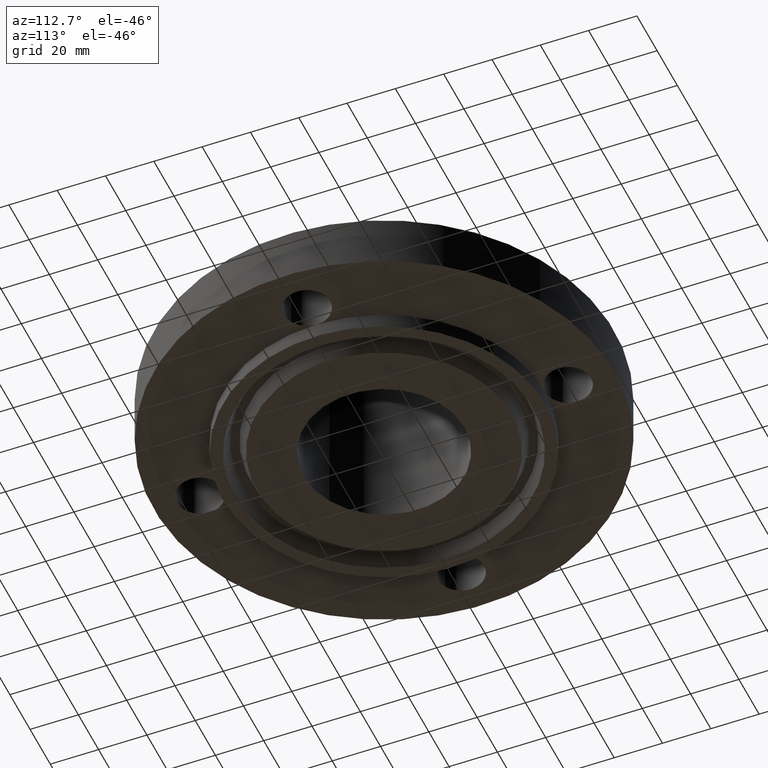
[diagram: clean part render]
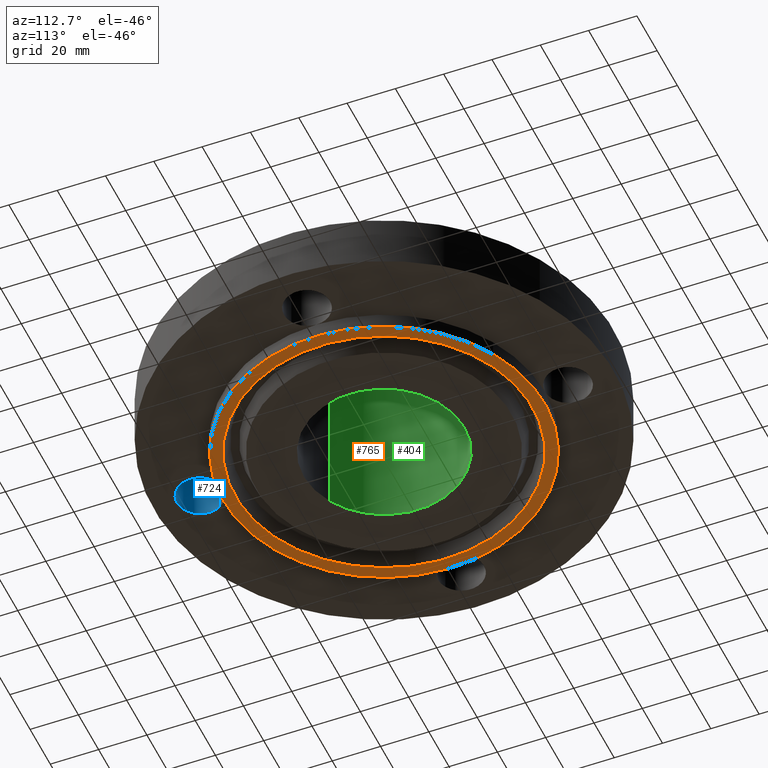
[diagram: same view with three faces highlighted in distinct colors, each labeled with its STEP entity id]
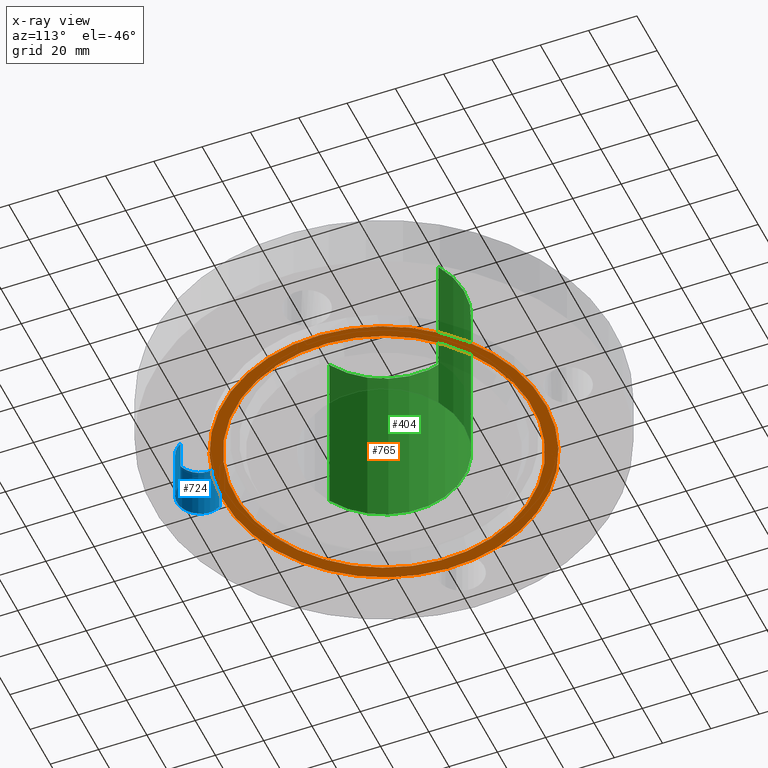
[diagram: x-ray of the same camera — body ghosted, the three highlighted faces saturated]
A machine part, auxiliary view with three faces highlighted in distinct colors.
The next image is the same camera in x-ray (body ghosted, the three faces saturated) — at least one of them is partly hidden behind the body in this view.
Their STEP definitions:

[orange] entity #765 — the highlighted planar face has unit normal (0, 0, -1).
#439=AXIS2_PLACEMENT_3D('Circle Axis2P3D',#437,#438,$) ;
#488=AXIS2_PLACEMENT_3D('Circle Axis2P3D',#486,#487,$) ;
#741=AXIS2_PLACEMENT_3D('Plane Axis2P3D',#738,#739,#740) ;
#749=AXIS2_PLACEMENT_3D('Circle Axis2P3D',#747,#748,$) ;
#758=AXIS2_PLACEMENT_3D('Circle Axis2P3D',#756,#757,$) ;
#437=CARTESIAN_POINT('Axis2P3D Location',(0.,0.,-0.250000000001)) ;
#441=CARTESIAN_POINT('Vertex',(-1.25849203884,-2.30365422497,-0.250000000001)) ;
#443=CARTESIAN_POINT('Vertex',(1.25849203884,2.30365422497,-0.250000000001)) ;
#486=CARTESIAN_POINT('Axis2P3D Location',(0.,0.,-0.250000000001)) ;
#738=CARTESIAN_POINT('Axis2P3D Location',(0.,1.31200000001,-0.250000000001)) ;
#747=CARTESIAN_POINT('Axis2P3D Location',(-4.19611851827E-016,-5.59482469102E-016,-0.250000000001)) ;
#751=CARTESIAN_POINT('Vertex',(1.16110872631,-2.12539526709,-0.250000000001)) ;
#753=CARTESIAN_POINT('Vertex',(-1.16110872631,2.12539526709,-0.250000000001)) ;
#756=CARTESIAN_POINT('Axis2P3D Location',(2.79741234551E-016,5.59482469102E-016,-0.250000000001)) ;
#438=DIRECTION('Axis2P3D Direction',(0.,0.,-0.0393700787402)) ;
#487=DIRECTION('Axis2P3D Direction',(0.,0.,-0.0393700787402)) ;
#739=DIRECTION('Axis2P3D Direction',(0.,0.,-0.0393700787402)) ;
#740=DIRECTION('Axis2P3D XDirection',(0.0393700787402,0.,0.)) ;
#748=DIRECTION('Axis2P3D Direction',(0.,0.,-0.0393700787402)) ;
#757=DIRECTION('Axis2P3D Direction',(0.,0.,-0.0393700787402)) ;
#744=ORIENTED_EDGE('',*,*,#445,.T.) ;
#745=ORIENTED_EDGE('',*,*,#490,.T.) ;
#762=ORIENTED_EDGE('',*,*,#755,.F.) ;
#763=ORIENTED_EDGE('',*,*,#760,.F.) ;
#764=FACE_BOUND('',#761,.T.) ;
#765=ADVANCED_FACE('PartBody',(#746,#764),#742,.T.) ;
#440=CIRCLE('generated circle',#439,2.62500000001) ;
#489=CIRCLE('generated circle',#488,2.62500000001) ;
#750=CIRCLE('generated circle',#749,2.42187500001) ;
#759=CIRCLE('generated circle',#758,2.42187500001) ;
#445=EDGE_CURVE('',#442,#444,#440,.T.) ;
#490=EDGE_CURVE('',#444,#442,#489,.T.) ;
#755=EDGE_CURVE('',#752,#754,#750,.T.) ;
#760=EDGE_CURVE('',#754,#752,#759,.T.) ;
#743=EDGE_LOOP('',(#744,#745)) ;
#761=EDGE_LOOP('',(#762,#763)) ;
#746=FACE_OUTER_BOUND('',#743,.T.) ;
#742=PLANE('',#741) ;
#442=VERTEX_POINT('',#441) ;
#444=VERTEX_POINT('',#443) ;
#752=VERTEX_POINT('',#751) ;
#754=VERTEX_POINT('',#753) ;

[blue] entity #724 — the highlighted cylindrical surface (edge-blend (fillet) strip) has radius 9.525 mm, axis along (-0, 0, -1).
#537=AXIS2_PLACEMENT_3D('Circle Axis2P3D',#535,#536,$) ;
#697=AXIS2_PLACEMENT_3D('Cylinder Axis2P3D',#694,#695,#696) ;
#715=AXIS2_PLACEMENT_3D('Circle Axis2P3D',#713,#714,$) ;
#532=CARTESIAN_POINT('Vertex',(-0.32909346071,-2.82021542303,0.)) ;
#535=CARTESIAN_POINT('Axis2P3D Location',(8.12997962914E-016,-3.00000000001,0.)) ;
#539=CARTESIAN_POINT('Vertex',(0.32909346071,-3.17978457699,0.)) ;
#694=CARTESIAN_POINT('Axis2P3D Location',(3.67394039746E-016,-3.00000000001,0.87606299213)) ;
#699=CARTESIAN_POINT('Line Origine',(0.32909346071,-3.17978457699,0.440000000002)) ;
#703=CARTESIAN_POINT('Vertex',(0.32909346071,-3.17978457699,0.880000000004)) ;
#706=CARTESIAN_POINT('Line Origine',(-0.32909346071,-2.82021542303,0.440000000002)) ;
#710=CARTESIAN_POINT('Vertex',(-0.32909346071,-2.82021542303,0.880000000004)) ;
#713=CARTESIAN_POINT('Axis2P3D Location',(3.67394039746E-016,-3.00000000001,0.880000000004)) ;
#536=DIRECTION('Axis2P3D Direction',(0.,0.,-0.0393700787402)) ;
#695=DIRECTION('Axis2P3D Direction',(-0.,0.,-0.0393700787402)) ;
#696=DIRECTION('Axis2P3D XDirection',(-0.0345504945626,0.0188750212049,0.)) ;
#700=DIRECTION('Vector Direction',(0.,0.,-0.0393700787402)) ;
#707=DIRECTION('Vector Direction',(0.,0.,-0.0393700787402)) ;
#714=DIRECTION('Axis2P3D Direction',(-0.,0.,-0.0393700787402)) ;
#701=VECTOR('Line Direction',#700,0.0393700787402) ;
#708=VECTOR('Line Direction',#707,0.0393700787402) ;
#719=ORIENTED_EDGE('',*,*,#705,.F.) ;
#720=ORIENTED_EDGE('',*,*,#541,.T.) ;
#721=ORIENTED_EDGE('',*,*,#712,.T.) ;
#722=ORIENTED_EDGE('',*,*,#717,.F.) ;
#724=ADVANCED_FACE('PartBody',(#723),#698,.F.) ;
#538=CIRCLE('generated circle',#537,0.375000000001) ;
#716=CIRCLE('generated circle',#715,0.375000000001) ;
#698=CYLINDRICAL_SURFACE('generated cylinder',#697,0.375000000001) ;
#541=EDGE_CURVE('',#540,#533,#538,.T.) ;
#705=EDGE_CURVE('',#540,#704,#702,.F.) ;
#712=EDGE_CURVE('',#533,#711,#709,.F.) ;
#717=EDGE_CURVE('',#704,#711,#716,.T.) ;
#718=EDGE_LOOP('',(#719,#720,#721,#722)) ;
#723=FACE_OUTER_BOUND('',#718,.T.) ;
#702=LINE('Line',#699,#701) ;
#709=LINE('Line',#706,#708) ;
#533=VERTEX_POINT('',#532) ;
#540=VERTEX_POINT('',#539) ;
#704=VERTEX_POINT('',#703) ;
#711=VERTEX_POINT('',#710) ;

[green] entity #404 — the highlighted cylindrical surface (partial cylindrical patch) has radius 33.3248 mm, axis along (0, 0, -1).
#351=AXIS2_PLACEMENT_3D('Cylinder Axis2P3D',#348,#349,#350) ;
#390=AXIS2_PLACEMENT_3D('Circle Axis2P3D',#388,#389,$) ;
#395=AXIS2_PLACEMENT_3D('Circle Axis2P3D',#393,#394,$) ;
#348=CARTESIAN_POINT('Axis2P3D Location',(0.,0.,1.22)) ;
#357=CARTESIAN_POINT('Vertex',(0.629006306651,1.1513883212,2.69000000001)) ;
#359=CARTESIAN_POINT('Vertex',(-0.629006306651,-1.1513883212,2.69000000001)) ;
#362=CARTESIAN_POINT('Line Origine',(0.629006306651,1.1513883212,1.22)) ;
#366=CARTESIAN_POINT('Vertex',(0.629006306651,1.1513883212,-0.250000000001)) ;
#373=CARTESIAN_POINT('Vertex',(-0.629006306651,-1.1513883212,-0.250000000001)) ;
#376=CARTESIAN_POINT('Line Origine',(-0.629006306651,-1.1513883212,1.22)) ;
#388=CARTESIAN_POINT('Axis2P3D Location',(0.,0.,2.69000000001)) ;
#393=CARTESIAN_POINT('Axis2P3D Location',(0.,0.,-0.250000000001)) ;
#349=DIRECTION('Axis2P3D Direction',(0.,0.,-0.0393700787402)) ;
#350=DIRECTION('Axis2P3D XDirection',(-0.0188750212049,-0.0345504945626,0.)) ;
#363=DIRECTION('Vector Direction',(0.,0.,-0.0393700787402)) ;
#377=DIRECTION('Vector Direction',(0.,0.,-0.0393700787402)) ;
#389=DIRECTION('Axis2P3D Direction',(0.,0.,-0.0393700787402)) ;
#394=DIRECTION('Axis2P3D Direction',(0.,0.,-0.0393700787402)) ;
#364=VECTOR('Line Direction',#363,0.0393700787402) ;
#378=VECTOR('Line Direction',#377,0.0393700787402) ;
#399=ORIENTED_EDGE('',*,*,#392,.F.) ;
#400=ORIENTED_EDGE('',*,*,#380,.T.) ;
#401=ORIENTED_EDGE('',*,*,#397,.T.) ;
#402=ORIENTED_EDGE('',*,*,#368,.F.) ;
#404=ADVANCED_FACE('PartBody',(#403),#352,.F.) ;
#391=CIRCLE('generated circle',#390,1.31200000001) ;
#396=CIRCLE('generated circle',#395,1.31200000001) ;
#352=CYLINDRICAL_SURFACE('generated cylinder',#351,1.31200000001) ;
#368=EDGE_CURVE('',#358,#367,#365,.T.) ;
#380=EDGE_CURVE('',#360,#374,#379,.T.) ;
#392=EDGE_CURVE('',#360,#358,#391,.T.) ;
#397=EDGE_CURVE('',#374,#367,#396,.T.) ;
#398=EDGE_LOOP('',(#399,#400,#401,#402)) ;
#403=FACE_OUTER_BOUND('',#398,.T.) ;
#365=LINE('Line',#362,#364) ;
#379=LINE('Line',#376,#378) ;
#358=VERTEX_POINT('',#357) ;
#360=VERTEX_POINT('',#359) ;
#367=VERTEX_POINT('',#366) ;
#374=VERTEX_POINT('',#373) ;